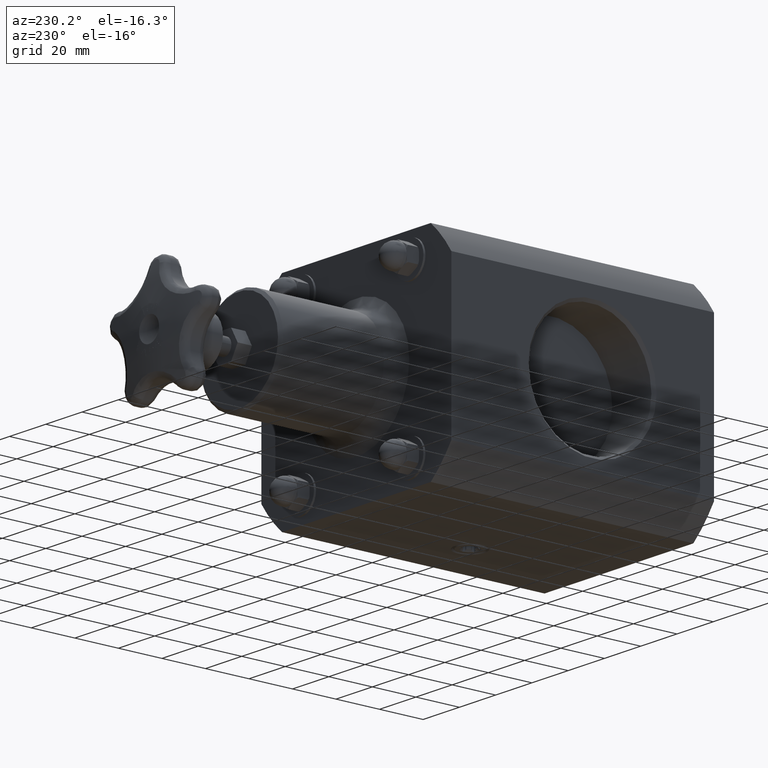
[diagram: clean part render]
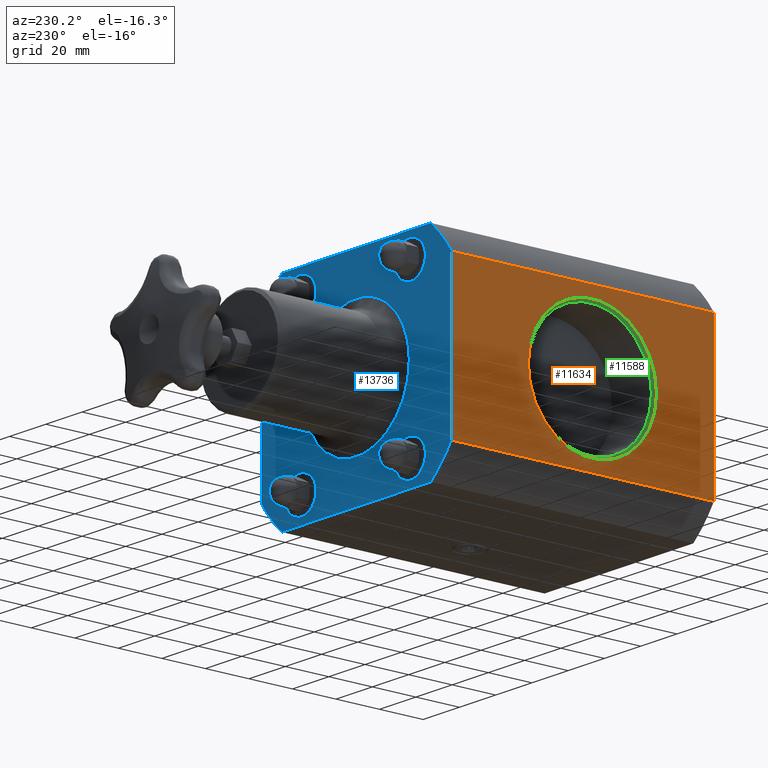
[diagram: same view with three faces highlighted in distinct colors, each labeled with its STEP entity id]
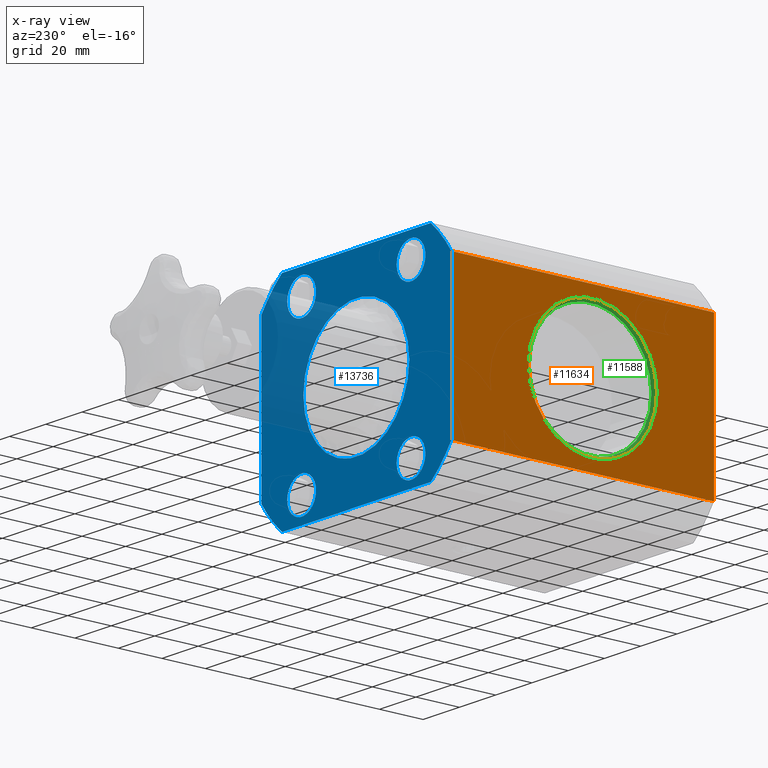
[diagram: x-ray of the same camera — body ghosted, the three highlighted faces saturated]
A machine part, auxiliary view with three faces highlighted in distinct colors.
The next image is the same camera in x-ray (body ghosted, the three faces saturated) — at least one of them is partly hidden behind the body in this view.
Their STEP definitions:

[orange] entity #11634 — the highlighted planar face has unit normal (-1, 0, 0).
#11408=CARTESIAN_POINT('',(-2.062500000000000,-1.422722E-015,1.368107726021602));
#11409=VERTEX_POINT('',#11408);
#11417=CARTESIAN_POINT('',(-2.062500000000000,-6.381291E-016,-1.368107726021602));
#11418=VERTEX_POINT('',#11417);
#11419=CARTESIAN_POINT('',(-2.062500000000000,-6.381291E-016,-1.368107726021602));
#11420=DIRECTION('',(0.0,0.0,1.0));
#11421=VECTOR('',#11420,2.736215452043204);
#11422=LINE('',#11419,#11421);
#11423=EDGE_CURVE('',#11418,#11409,#11422,.T.);
#11577=CARTESIAN_POINT('',(-2.062500000000002,3.357375000000000,6.676102E-016));
#11578=VERTEX_POINT('',#11577);
#11579=CARTESIAN_POINT('',(-2.062500000000001,2.198000000000000,4.771488E-016));
#11580=DIRECTION('',(-1.0,0.0,0.0));
#11581=DIRECTION('',(0.0,-1.0,0.0));
#11582=AXIS2_PLACEMENT_3D('',#11579,#11580,#11581);
#11583=CIRCLE('',#11582,1.159374999999999);
#11584=EDGE_CURVE('',#11578,#11578,#11583,.T.);
#11601=CARTESIAN_POINT('',(-2.062500000000000,-1.422722E-015,1.368107726021602));
#11602=DIRECTION('',(-1.0,0.0,0.0));
#11603=DIRECTION('',(0.0,0.0,1.0));
#11604=AXIS2_PLACEMENT_3D('',#11601,#11602,#11603);
#11605=PLANE('',#11604);
#11606=CARTESIAN_POINT('',(-2.062500000000004,4.749999999999999,-1.368107726021601));
#11607=VERTEX_POINT('',#11606);
#11608=CARTESIAN_POINT('',(-2.062500000000000,-6.381291E-016,-1.368107726021602));
#11609=DIRECTION('',(0.0,1.0,0.0));
#11610=VECTOR('',#11609,4.750000000000000);
#11611=LINE('',#11608,#11610);
#11612=EDGE_CURVE('',#11418,#11607,#11611,.T.);
#11613=ORIENTED_EDGE('',*,*,#11612,.F.);
#11614=ORIENTED_EDGE('',*,*,#11423,.T.);
#11615=CARTESIAN_POINT('',(-2.062500000000003,4.749999999999999,1.368107726021602));
#11616=VERTEX_POINT('',#11615);
#11617=CARTESIAN_POINT('',(-2.062500000000000,-1.422722E-015,1.368107726021602));
#11618=DIRECTION('',(0.0,1.0,0.0));
#11619=VECTOR('',#11618,4.750000000000001);
#11620=LINE('',#11617,#11619);
#11621=EDGE_CURVE('',#11409,#11616,#11620,.T.);
#11622=ORIENTED_EDGE('',*,*,#11621,.T.);
#11623=CARTESIAN_POINT('',(-2.062500000000003,4.749999999999999,1.368107726021603));
#11624=DIRECTION('',(0.0,0.0,-1.0));
#11625=VECTOR('',#11624,2.736215452043203);
#11626=LINE('',#11623,#11625);
#11627=EDGE_CURVE('',#11616,#11607,#11626,.T.);
#11628=ORIENTED_EDGE('',*,*,#11627,.T.);
#11629=EDGE_LOOP('',(#11613,#11614,#11622,#11628));
#11630=FACE_OUTER_BOUND('',#11629,.T.);
#11631=ORIENTED_EDGE('',*,*,#11584,.F.);
#11632=EDGE_LOOP('',(#11631));
#11633=FACE_BOUND('',#11632,.T.);
#11634=ADVANCED_FACE('',(#11630,#11633),#11605,.T.);

[blue] entity #13736 — the highlighted planar face has unit normal (0, 1, 0).
#9462=CARTESIAN_POINT('',(-0.874999999999994,4.750000000000002,1.438000000000000));
#9463=VERTEX_POINT('',#9462);
#9464=CARTESIAN_POINT('',(-1.187499999999994,4.750000000000005,1.438000000000000));
#9465=DIRECTION('',(0.0,-1.0,0.0));
#9466=DIRECTION('',(1.0,0.0,0.0));
#9467=AXIS2_PLACEMENT_3D('',#9464,#9465,#9466);
#9468=CIRCLE('',#9467,0.312500000000000);
#9469=EDGE_CURVE('',#9463,#9463,#9468,.T.);
#10872=CARTESIAN_POINT('',(1.500000000000006,4.750000000000002,1.438000000000000));
#10873=VERTEX_POINT('',#10872);
#10874=CARTESIAN_POINT('',(1.187500000000006,4.750000000000003,1.438000000000000));
#10875=DIRECTION('',(0.0,-1.0,0.0));
#10876=DIRECTION('',(1.0,0.0,0.0));
#10877=AXIS2_PLACEMENT_3D('',#10874,#10875,#10876);
#10878=CIRCLE('',#10877,0.312500000000000);
#10879=EDGE_CURVE('',#10873,#10873,#10878,.T.);
#11329=CARTESIAN_POINT('',(1.149999999999997,4.750000000000002,-6.675809E-016));
#11330=VERTEX_POINT('',#11329);
#11331=CARTESIAN_POINT('',(-3.325397E-015,4.750000000000001,-2.622574E-016));
#11332=DIRECTION('',(0.0,-1.0,0.0));
#11333=DIRECTION('',(1.0,0.0,0.0));
#11334=AXIS2_PLACEMENT_3D('',#11331,#11332,#11333);
#11335=CIRCLE('',#11334,1.150000000000000);
#11336=EDGE_CURVE('',#11330,#11330,#11335,.T.);
#11532=CARTESIAN_POINT('',(1.615549442140348,4.750000000000002,-1.875000000000001));
#11533=VERTEX_POINT('',#11532);
#11541=CARTESIAN_POINT('',(-1.615549442140355,4.749999999999999,-1.875000000000000));
#11542=VERTEX_POINT('',#11541);
#11549=CARTESIAN_POINT('',(-1.615549442140356,4.749999999999999,-1.875000000000000));
#11550=DIRECTION('',(1.0,0.0,0.0));
#11551=VECTOR('',#11550,3.231098884280703);
#11552=LINE('',#11549,#11551);
#11553=EDGE_CURVE('',#11542,#11533,#11552,.T.);
#11606=CARTESIAN_POINT('',(-2.062500000000004,4.749999999999999,-1.368107726021601));
#11607=VERTEX_POINT('',#11606);
#11615=CARTESIAN_POINT('',(-2.062500000000003,4.749999999999999,1.368107726021602));
#11616=VERTEX_POINT('',#11615);
#11623=CARTESIAN_POINT('',(-2.062500000000003,4.749999999999999,1.368107726021603));
#11624=DIRECTION('',(0.0,0.0,-1.0));
#11625=VECTOR('',#11624,2.736215452043203);
#11626=LINE('',#11623,#11625);
#11627=EDGE_CURVE('',#11616,#11607,#11626,.T.);
#11688=CARTESIAN_POINT('',(2.062499999999997,4.750000000000002,1.368107726021602));
#11689=VERTEX_POINT('',#11688);
#11697=CARTESIAN_POINT('',(2.062499999999996,4.750000000000002,-1.368107726021604));
#11698=VERTEX_POINT('',#11697);
#11705=CARTESIAN_POINT('',(2.062499999999996,4.750000000000002,-1.368107726021604));
#11706=DIRECTION('',(0.0,0.0,1.0));
#11707=VECTOR('',#11706,2.736215452043206);
#11708=LINE('',#11705,#11707);
#11709=EDGE_CURVE('',#11698,#11689,#11708,.T.);
#11879=CARTESIAN_POINT('',(-1.615549442140353,4.749999999999999,1.875000000000001));
#11880=VERTEX_POINT('',#11879);
#11888=CARTESIAN_POINT('',(1.615549442140348,4.750000000000002,1.875000000000000));
#11889=VERTEX_POINT('',#11888);
#11896=CARTESIAN_POINT('',(1.615549442140348,4.750000000000002,1.875000000000000));
#11897=DIRECTION('',(-1.0,0.0,0.0));
#11898=VECTOR('',#11897,3.231098884280701);
#11899=LINE('',#11896,#11898);
#11900=EDGE_CURVE('',#11889,#11880,#11899,.T.);
#11913=CARTESIAN_POINT('',(-3.325397E-015,4.750000000000001,-2.622574E-016));
#11914=DIRECTION('',(0.0,-1.0,0.0));
#11915=DIRECTION('',(1.0,0.0,0.0));
#11916=AXIS2_PLACEMENT_3D('',#11913,#11914,#11915);
#11917=CIRCLE('',#11916,2.475000000000000);
#11918=EDGE_CURVE('',#11880,#11616,#11917,.T.);
#11931=CARTESIAN_POINT('',(-3.325397E-015,4.750000000000001,-2.622574E-016));
#11932=DIRECTION('',(0.0,-1.0,0.0));
#11933=DIRECTION('',(1.0,0.0,0.0));
#11934=AXIS2_PLACEMENT_3D('',#11931,#11932,#11933);
#11935=CIRCLE('',#11934,2.475000000000000);
#11936=EDGE_CURVE('',#11607,#11542,#11935,.T.);
#11949=CARTESIAN_POINT('',(-3.325397E-015,4.750000000000001,-2.622574E-016));
#11950=DIRECTION('',(0.0,-1.0,0.0));
#11951=DIRECTION('',(1.0,0.0,0.0));
#11952=AXIS2_PLACEMENT_3D('',#11949,#11950,#11951);
#11953=CIRCLE('',#11952,2.475000000000000);
#11954=EDGE_CURVE('',#11533,#11698,#11953,.T.);
#11967=CARTESIAN_POINT('',(-3.325397E-015,4.750000000000001,-2.622574E-016));
#11968=DIRECTION('',(0.0,-1.0,0.0));
#11969=DIRECTION('',(1.0,0.0,0.0));
#11970=AXIS2_PLACEMENT_3D('',#11967,#11968,#11969);
#11971=CIRCLE('',#11970,2.475000000000000);
#11972=EDGE_CURVE('',#11689,#11889,#11971,.T.);
#12312=CARTESIAN_POINT('',(1.500000000000006,4.750000000000002,-1.437000000000001));
#12313=VERTEX_POINT('',#12312);
#12314=CARTESIAN_POINT('',(1.187500000000006,4.750000000000003,-1.437000000000001));
#12315=DIRECTION('',(0.0,-1.0,0.0));
#12316=DIRECTION('',(1.0,0.0,0.0));
#12317=AXIS2_PLACEMENT_3D('',#12314,#12315,#12316);
#12318=CIRCLE('',#12317,0.312500000000000);
#12319=EDGE_CURVE('',#12313,#12313,#12318,.T.);
#13698=CARTESIAN_POINT('',(1.812499999999997,4.750000000000002,-9.010825E-016));
#13699=DIRECTION('',(0.0,1.0,0.0));
#13700=DIRECTION('',(0.0,0.0,1.0));
#13701=AXIS2_PLACEMENT_3D('',#13698,#13699,#13700);
#13702=PLANE('',#13701);
#13703=ORIENTED_EDGE('',*,*,#11627,.F.);
#13704=ORIENTED_EDGE('',*,*,#11918,.F.);
#13705=ORIENTED_EDGE('',*,*,#11900,.F.);
#13706=ORIENTED_EDGE('',*,*,#11972,.F.);
#13707=ORIENTED_EDGE('',*,*,#11709,.F.);
#13708=ORIENTED_EDGE('',*,*,#11954,.F.);
#13709=ORIENTED_EDGE('',*,*,#11553,.F.);
#13710=ORIENTED_EDGE('',*,*,#11936,.F.);
#13711=EDGE_LOOP('',(#13703,#13704,#13705,#13706,#13707,#13708,#13709,#13710));
#13712=FACE_OUTER_BOUND('',#13711,.T.);
#13713=ORIENTED_EDGE('',*,*,#9469,.T.);
#13714=EDGE_LOOP('',(#13713));
#13715=FACE_BOUND('',#13714,.T.);
#13716=ORIENTED_EDGE('',*,*,#10879,.T.);
#13717=EDGE_LOOP('',(#13716));
#13718=FACE_BOUND('',#13717,.T.);
#13719=ORIENTED_EDGE('',*,*,#11336,.T.);
#13720=EDGE_LOOP('',(#13719));
#13721=FACE_BOUND('',#13720,.T.);
#13722=ORIENTED_EDGE('',*,*,#12319,.T.);
#13723=EDGE_LOOP('',(#13722));
#13724=FACE_BOUND('',#13723,.T.);
#13725=CARTESIAN_POINT('',(-0.874999999999994,4.750000000000002,-1.437000000000001));
#13726=VERTEX_POINT('',#13725);
#13727=CARTESIAN_POINT('',(-1.187499999999994,4.750000000000005,-1.437000000000001));
#13728=DIRECTION('',(0.0,-1.0,0.0));
#13729=DIRECTION('',(1.0,0.0,0.0));
#13730=AXIS2_PLACEMENT_3D('',#13727,#13728,#13729);
#13731=CIRCLE('',#13730,0.312500000000000);
#13732=EDGE_CURVE('',#13726,#13726,#13731,.T.);
#13733=ORIENTED_EDGE('',*,*,#13732,.T.);
#13734=EDGE_LOOP('',(#13733));
#13735=FACE_BOUND('',#13734,.T.);
#13736=ADVANCED_FACE('',(#13712,#13715,#13718,#13721,#13724,#13735),#13702,.T.);

[green] entity #11588 — the highlighted conical surface has half-angle 45 deg.
#11561=CARTESIAN_POINT('',(-2.037500000000000,2.198000000000000,4.727699E-016));
#11562=DIRECTION('',(-1.0,-4.996004E-016,1.751579E-016));
#11563=DIRECTION('',(0.0,-1.0,0.0));
#11564=AXIS2_PLACEMENT_3D('',#11561,#11562,#11563);
#11565=CONICAL_SURFACE('',#11564,1.134375000000000,44.999999999998394);
#11566=CARTESIAN_POINT('',(-2.012499999999999,3.307375000000000,9.223568E-016));
#11567=VERTEX_POINT('',#11566);
#11568=CARTESIAN_POINT('',(-2.012499999999999,2.198000000000000,4.683909E-016));
#11569=DIRECTION('',(1.0,0.0,0.0));
#11570=DIRECTION('',(0.0,-1.0,0.0));
#11571=AXIS2_PLACEMENT_3D('',#11568,#11569,#11570);
#11572=CIRCLE('',#11571,1.109375000000000);
#11573=EDGE_CURVE('',#11567,#11567,#11572,.T.);
#11574=ORIENTED_EDGE('',*,*,#11573,.T.);
#11575=EDGE_LOOP('',(#11574));
#11576=FACE_OUTER_BOUND('',#11575,.T.);
#11577=CARTESIAN_POINT('',(-2.062500000000002,3.357375000000000,6.676102E-016));
#11578=VERTEX_POINT('',#11577);
#11579=CARTESIAN_POINT('',(-2.062500000000001,2.198000000000000,4.771488E-016));
#11580=DIRECTION('',(-1.0,0.0,0.0));
#11581=DIRECTION('',(0.0,-1.0,0.0));
#11582=AXIS2_PLACEMENT_3D('',#11579,#11580,#11581);
#11583=CIRCLE('',#11582,1.159374999999999);
#11584=EDGE_CURVE('',#11578,#11578,#11583,.T.);
#11585=ORIENTED_EDGE('',*,*,#11584,.T.);
#11586=EDGE_LOOP('',(#11585));
#11587=FACE_BOUND('',#11586,.T.);
#11588=ADVANCED_FACE('',(#11576,#11587),#11565,.F.);